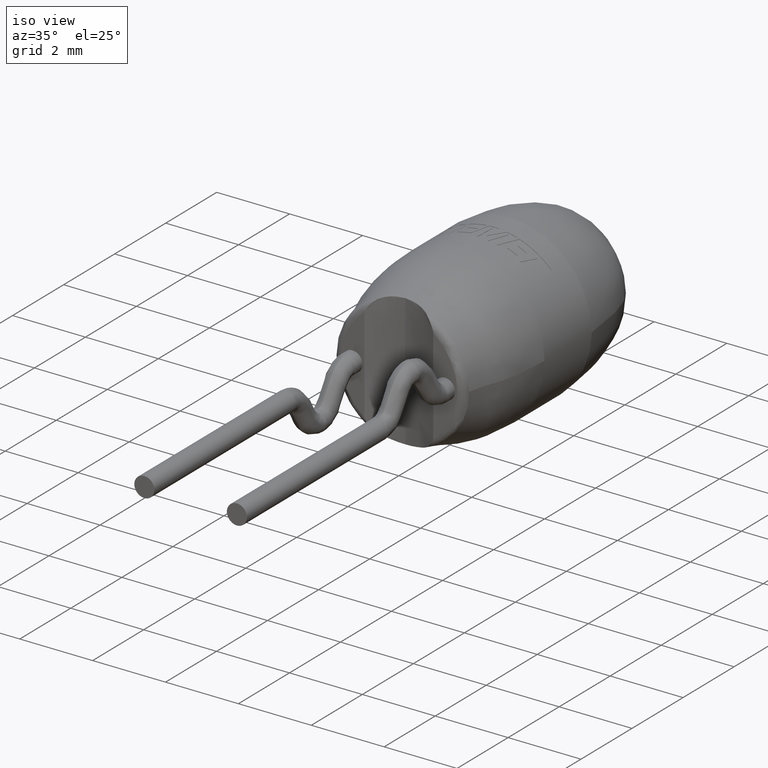
[diagram: clean part render]
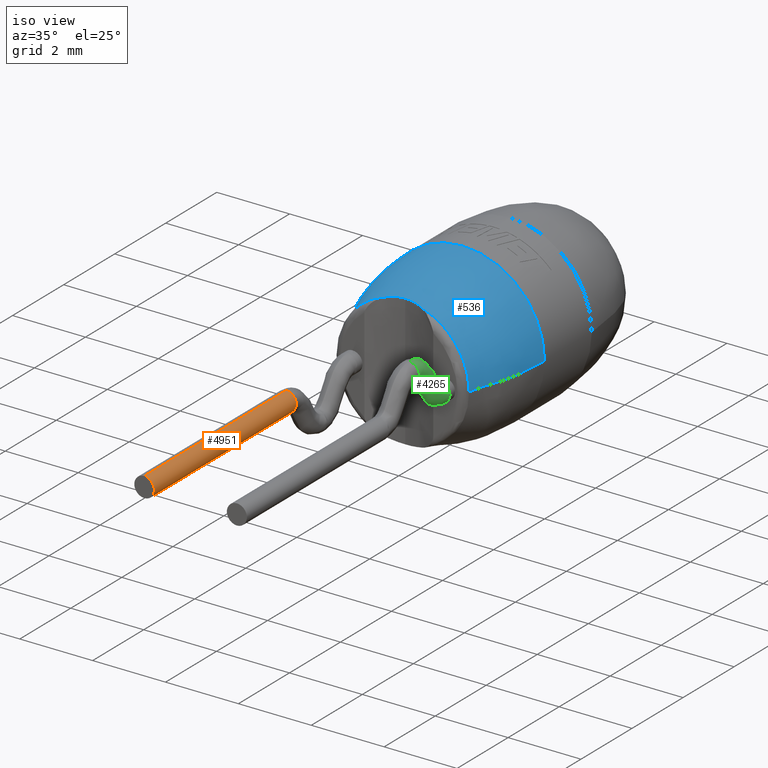
[diagram: same view with three faces highlighted in distinct colors, each labeled with its STEP entity id]
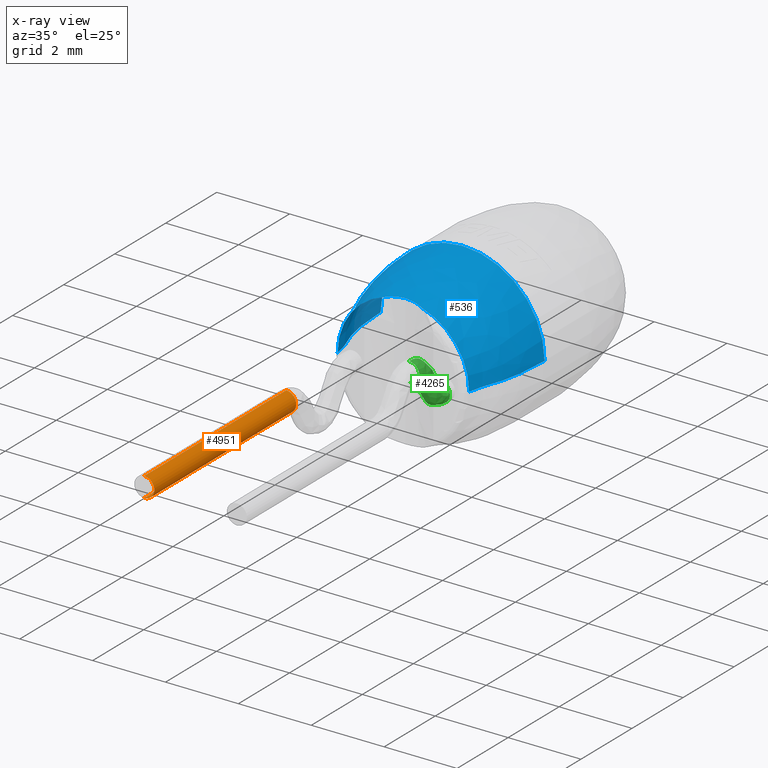
[diagram: x-ray of the same camera — body ghosted, the three highlighted faces saturated]
A machine part, iso view with three faces highlighted in distinct colors.
The next image is the same camera in x-ray (body ghosted, the three faces saturated) — at least one of them is partly hidden behind the body in this view.
Their STEP definitions:

[orange] entity #4951 — the highlighted face is a freeform B-spline surface patch.
#67 = CARTESIAN_POINT ( 'NONE',  ( -1.270000000000000000, -2.602472728346504100, -0.2749999999999990200 ) ) ;
#84 = CARTESIAN_POINT ( 'NONE',  ( -1.270000000000000000, -8.160640000000000800, 0.2750000000000005800 ) ) ;
#148 = CARTESIAN_POINT ( 'NONE',  ( -1.270000000000000000, -8.160640000000000800, -0.2749999999999997400 ) ) ;
#202 =( BOUNDED_SURFACE ( )  B_SPLINE_SURFACE ( 3, 1, ( 
 ( #4151, #4241 ),
 ( #2132, #4200 ),
 ( #1374, #3808 ),
 ( #2596, #4621 ),
 ( #4636, #3012 ),
 ( #576, #1755 ),
 ( #2181, #84 ) ),
 .UNSPECIFIED., .T., .F., .T. ) 
 B_SPLINE_SURFACE_WITH_KNOTS ( ( 4, 3, 4 ),
 ( 2, 2 ),
 ( 0.0000000000000000000, 0.5000000000000000000, 1.000000000000000000 ),
 ( 0.0000000000000000000, 1.000000000000000000 ),
 .UNSPECIFIED. ) 
 GEOMETRIC_REPRESENTATION_ITEM ( )  RATIONAL_B_SPLINE_SURFACE ( (
 ( 1.000000000000000000, 1.000000000000000000),
 ( 0.3333333333333333700, 0.3333333333333333700),
 ( 0.3333333333333333700, 0.3333333333333333700),
 ( 1.000000000000000000, 1.000000000000000000),
 ( 0.3333333333333333700, 0.3333333333333333700),
 ( 0.3333333333333333700, 0.3333333333333333700),
 ( 1.000000000000000000, 1.000000000000000000) ) ) 
 REPRESENTATION_ITEM ( '' )  SURFACE ( )  );
#261 = CARTESIAN_POINT ( 'NONE',  ( -0.7200000000000002000, -2.602472728346504100, -0.2749999999999980800 ) ) ;
#299 = CARTESIAN_POINT ( 'NONE',  ( -1.270000000000000000, -8.160640000000000800, 0.2750000000000006300 ) ) ;
#440 = CARTESIAN_POINT ( 'NONE',  ( -1.270000000000000000, -8.160640000000000800, -0.2749999999999997400 ) ) ;
#512 = EDGE_CURVE ( 'NONE', #4639, #2199, #1063, .T. ) ;
#576 = CARTESIAN_POINT ( 'NONE',  ( -0.7200000000000002000, -2.598807271653498700, 0.2750000000000011300 ) ) ;
#896 = CARTESIAN_POINT ( 'NONE',  ( -1.270000000000000000, -2.598807271653498700, 0.2750000000000012400 ) ) ;
#908 = DIRECTION ( 'NONE',  ( -0.0000000000000000000, 1.000000000000000000, 0.0000000000000000000 ) ) ;
#1026 = ORIENTED_EDGE ( 'NONE', *, *, #2869, .T. ) ;
#1063 = B_SPLINE_CURVE_WITH_KNOTS ( 'NONE', 1,
 ( #67, #440 ),
 .UNSPECIFIED., .F., .F.,
 ( 2, 2 ),
 ( 0.0000000000000000000, 1.000000000000000000 ),
 .UNSPECIFIED. ) ;
#1126 = EDGE_CURVE ( 'NONE', #3101, #2199, #3666, .T. ) ;
#1374 = CARTESIAN_POINT ( 'NONE',  ( -1.819999999999999800, -2.602472728346504100, -0.2749999999999985200 ) ) ;
#1755 = CARTESIAN_POINT ( 'NONE',  ( -0.7200000000000002000, -8.160639999999999000, 0.2750000000000004700 ) ) ;
#1920 = CARTESIAN_POINT ( 'NONE',  ( -1.270000000000000000, -2.598807271653498700, 0.2750000000000012400 ) ) ;
#1935 = CARTESIAN_POINT ( 'NONE',  ( -1.270000000000000000, -2.602472728346504100, -0.2749999999999990200 ) ) ;
#2057 = CARTESIAN_POINT ( 'NONE',  ( -1.270000000000000000, -8.160640000000000800, 0.2750000000000006300 ) ) ;
#2111 = CARTESIAN_POINT ( 'NONE',  ( -1.270000000000000000, -8.160640000000000800, 4.065758146820641600E-016 ) ) ;
#2132 = CARTESIAN_POINT ( 'NONE',  ( -1.819999999999999800, -2.598807271653498700, 0.2750000000000011300 ) ) ;
#2181 = CARTESIAN_POINT ( 'NONE',  ( -1.270000000000000000, -2.598807271653498700, 0.2750000000000012400 ) ) ;
#2199 = VERTEX_POINT ( 'NONE', #148 ) ;
#2461 = CARTESIAN_POINT ( 'NONE',  ( -1.270000000000000000, -2.598807271653498700, 0.2750000000000012400 ) ) ;
#2596 = CARTESIAN_POINT ( 'NONE',  ( -1.270000000000000000, -2.602472728346504100, -0.2749999999999990200 ) ) ;
#2852 =( BOUNDED_CURVE ( )  B_SPLINE_CURVE ( 3, ( #4370, #261, #3986, #1920 ),
 .UNSPECIFIED., .F., .F. ) 
 B_SPLINE_CURVE_WITH_KNOTS ( ( 4, 4 ),
 ( 0.5000000000000004400, 1.000000000000000000 ),
 .UNSPECIFIED. ) 
 CURVE ( )  GEOMETRIC_REPRESENTATION_ITEM ( )  RATIONAL_B_SPLINE_CURVE ( ( 0.9999999999999994400, 0.3333333333333333700, 0.3333333333333339800, 1.000000000000000000 ) ) 
 REPRESENTATION_ITEM ( '' )  );
#2869 = EDGE_CURVE ( 'NONE', #2971, #3101, #3716, .T. ) ;
#2971 = VERTEX_POINT ( 'NONE', #896 ) ;
#3012 = CARTESIAN_POINT ( 'NONE',  ( -0.7200000000000002000, -8.160639999999999000, -0.2749999999999991900 ) ) ;
#3101 = VERTEX_POINT ( 'NONE', #299 ) ;
#3578 = ORIENTED_EDGE ( 'NONE', *, *, #4034, .T. ) ;
#3666 = CIRCLE ( 'NONE', #3774, 0.2750000000000001900 ) ;
#3716 = B_SPLINE_CURVE_WITH_KNOTS ( 'NONE', 1,
 ( #2461, #2057 ),
 .UNSPECIFIED., .F., .F.,
 ( 2, 2 ),
 ( 0.0000000000000000000, 1.000000000000000000 ),
 .UNSPECIFIED. ) ;
#3739 = DIRECTION ( 'NONE',  ( 0.0000000000000000000, 0.0000000000000000000, 1.000000000000000000 ) ) ;
#3774 = AXIS2_PLACEMENT_3D ( 'NONE', #2111, #908, #3739 ) ;
#3808 = CARTESIAN_POINT ( 'NONE',  ( -1.819999999999999800, -8.160639999999999000, -0.2749999999999991900 ) ) ;
#3986 = CARTESIAN_POINT ( 'NONE',  ( -0.7200000000000016400, -2.598807271653498700, 0.2750000000000011300 ) ) ;
#4034 = EDGE_CURVE ( 'NONE', #4639, #2971, #2852, .T. ) ;
#4151 = CARTESIAN_POINT ( 'NONE',  ( -1.270000000000000000, -2.598807271653498700, 0.2750000000000012400 ) ) ;
#4153 = ORIENTED_EDGE ( 'NONE', *, *, #512, .F. ) ;
#4200 = CARTESIAN_POINT ( 'NONE',  ( -1.819999999999999800, -8.160639999999999000, 0.2750000000000004700 ) ) ;
#4204 = FACE_OUTER_BOUND ( 'NONE', #5241, .T. ) ;
#4241 = CARTESIAN_POINT ( 'NONE',  ( -1.270000000000000000, -8.160640000000000800, 0.2750000000000005800 ) ) ;
#4370 = CARTESIAN_POINT ( 'NONE',  ( -1.270000000000000000, -2.602472728346504100, -0.2749999999999990200 ) ) ;
#4621 = CARTESIAN_POINT ( 'NONE',  ( -1.270000000000000000, -8.160640000000000800, -0.2749999999999997400 ) ) ;
#4636 = CARTESIAN_POINT ( 'NONE',  ( -0.7200000000000002000, -2.602472728346504100, -0.2749999999999985200 ) ) ;
#4639 = VERTEX_POINT ( 'NONE', #1935 ) ;
#4728 = ORIENTED_EDGE ( 'NONE', *, *, #1126, .T. ) ;
#4951 = ADVANCED_FACE ( 'NONE', ( #4204 ), #202, .T. ) ;
#5241 = EDGE_LOOP ( 'NONE', ( #4153, #3578, #1026, #4728 ) ) ;

[blue] entity #536 — the highlighted face is a freeform B-spline surface patch.
#22 = ORIENTED_EDGE ( 'NONE', *, *, #133, .T. ) ;
#29 = VERTEX_POINT ( 'NONE', #511 ) ;
#133 = EDGE_CURVE ( 'NONE', #3281, #4577, #1496, .T. ) ;
#189 = CARTESIAN_POINT ( 'NONE',  ( 0.3498740845032951000, 0.2281847305120173200, 1.784245977583445600 ) ) ;
#195 = CARTESIAN_POINT ( 'NONE',  ( -2.250000000000000000, 2.498771519999999600, 5.510910596163088600E-016 ) ) ;
#244 = CIRCLE ( 'NONE', #5180, 2.250000000000000000 ) ;
#251 = CARTESIAN_POINT ( 'NONE',  ( -2.249999999999998200, 2.498771519999999600, 4.499999999999999100 ) ) ;
#390 = AXIS2_PLACEMENT_3D ( 'NONE', #1227, #3278, #2853 ) ;
#486 = CARTESIAN_POINT ( 'NONE',  ( -0.1779206026474264300, 0.2443543806535133900, 1.812964344015799400 ) ) ;
#511 = CARTESIAN_POINT ( 'NONE',  ( -0.5133288383304959200, 0.1795771798991588600, 1.730556491400163000 ) ) ;
#536 = ADVANCED_FACE ( 'NONE', ( #1425 ), #2008, .T. ) ;
#572 = ORIENTED_EDGE ( 'NONE', *, *, #3342, .F. ) ;
#621 = VERTEX_POINT ( 'NONE', #4865 ) ;
#661 = CARTESIAN_POINT ( 'NONE',  ( 2.250000000000000000, 2.498771519999999600, -2.755455298081544300E-016 ) ) ;
#831 = ORIENTED_EDGE ( 'NONE', *, *, #1059, .T. ) ;
#1055 = CARTESIAN_POINT ( 'NONE',  ( 2.211545190359239600, 0.8660124703083875700, -2.708361738543167300E-016 ) ) ;
#1059 = EDGE_CURVE ( 'NONE', #3413, #3419, #4500, .T. ) ;
#1075 = CARTESIAN_POINT ( 'NONE',  ( 1.805085113279457900, 0.1795771798833289100, -2.210591706166225600E-016 ) ) ;
#1149 = CARTESIAN_POINT ( 'NONE',  ( 0.0000000000000000000, 2.498771519999999600, 0.0000000000000000000 ) ) ;
#1169 = EDGE_CURVE ( 'NONE', #4577, #3413, #2954, .T. ) ;
#1181 = CARTESIAN_POINT ( 'NONE',  ( -1.869356933838746600, 0.8056988584797130100, 0.0000000000000000000 ) ) ;
#1201 = CARTESIAN_POINT ( 'NONE',  ( -2.250000000000000000, 2.498771519999999600, 0.0000000000000000000 ) ) ;
#1227 = CARTESIAN_POINT ( 'NONE',  ( 0.0000000000000000000, 2.498771519999999600, 0.0000000000000000000 ) ) ;
#1291 = VERTEX_POINT ( 'NONE', #2593 ) ;
#1405 = ORIENTED_EDGE ( 'NONE', *, *, #1169, .T. ) ;
#1425 = FACE_OUTER_BOUND ( 'NONE', #4739, .T. ) ;
#1463 = DIRECTION ( 'NONE',  ( 0.0000000000000000000, 0.0000000000000000000, -1.000000000000000000 ) ) ;
#1496 = CIRCLE ( 'NONE', #4815, 1.805085113281082600 ) ;
#1582 = CARTESIAN_POINT ( 'NONE',  ( 0.0000000000000000000, 0.1795771798991586700, 0.0000000000000000000 ) ) ;
#1706 = ORIENTED_EDGE ( 'NONE', *, *, #5014, .T. ) ;
#1840 = CARTESIAN_POINT ( 'NONE',  ( 2.211545190359240500, 0.8660124703083875700, 4.423090380718478300 ) ) ;
#1865 = CARTESIAN_POINT ( 'NONE',  ( -1.805085113279457900, 0.1795771798833289100, 4.421183412332451100E-016 ) ) ;
#2008 =( BOUNDED_SURFACE ( )  B_SPLINE_SURFACE ( 3, 3, ( 
 ( #1075, #2227, #4710, #1865 ),
 ( #2668, #2294, #3050, #2702 ),
 ( #1055, #1840, #2651, #2276 ),
 ( #661, #3516, #251, #195 ) ),
 .UNSPECIFIED., .F., .F., .T. ) 
 B_SPLINE_SURFACE_WITH_KNOTS ( ( 4, 4 ),
 ( 4, 4 ),
 ( 0.08076055771298268300, 1.000000000000000000 ),
 ( 0.0000000000000000000, 1.000000000000000000 ),
 .UNSPECIFIED. ) 
 GEOMETRIC_REPRESENTATION_ITEM ( )  RATIONAL_B_SPLINE_SURFACE ( (
 ( 1.000000000000000000, 0.3333333333333334300, 0.3333333333333334300, 1.000000000000000000),
 ( 1.000000000000000000, 0.3333333333333334300, 0.3333333333333334300, 1.000000000000000000),
 ( 1.000000000000000000, 0.3333333333333334300, 0.3333333333333334300, 1.000000000000000000),
 ( 1.000000000000000000, 0.3333333333333334300, 0.3333333333333334300, 1.000000000000000000) ) ) 
 REPRESENTATION_ITEM ( '' )  SURFACE ( )  );
#2093 = CARTESIAN_POINT ( 'NONE',  ( 1.805085113281082600, 0.1795771798991586700, -2.483023502125002300E-016 ) ) ;
#2227 = CARTESIAN_POINT ( 'NONE',  ( 1.805085113279458300, 0.1795771798833288900, 3.610170226558914400 ) ) ;
#2276 = CARTESIAN_POINT ( 'NONE',  ( -2.211545190359239600, 0.8660124703083875700, 5.416723477086333500E-016 ) ) ;
#2294 = CARTESIAN_POINT ( 'NONE',  ( 1.869356933838747000, 0.8056988584797130100, 3.738713867677491800 ) ) ;
#2370 = DIRECTION ( 'NONE',  ( -0.0000000000000000000, -1.000000000000000000, -0.0000000000000000000 ) ) ;
#2402 = CARTESIAN_POINT ( 'NONE',  ( -2.211545190359239600, 0.8660124703083875700, 0.0000000000000000000 ) ) ;
#2593 = CARTESIAN_POINT ( 'NONE',  ( 0.0000000000000000000, 0.2500000000000000000, 1.813783581535901400 ) ) ;
#2602 = CARTESIAN_POINT ( 'NONE',  ( 0.0000000000000000000, 0.1795771798991586700, 0.0000000000000000000 ) ) ;
#2651 = CARTESIAN_POINT ( 'NONE',  ( -2.211545190359239100, 0.8660124703083875700, 4.423090380718480000 ) ) ;
#2668 = CARTESIAN_POINT ( 'NONE',  ( 1.869356933838746600, 0.8056988584797130100, -2.289301985489531500E-016 ) ) ;
#2702 = CARTESIAN_POINT ( 'NONE',  ( -1.869356933838746600, 0.8056988584797130100, 4.578603970979062900E-016 ) ) ;
#2853 = DIRECTION ( 'NONE',  ( 0.0000000000000000000, 0.0000000000000000000, -1.000000000000000000 ) ) ;
#2856 = DIRECTION ( 'NONE',  ( 0.0000000000000000000, 1.000000000000000000, 0.0000000000000000000 ) ) ;
#2954 = B_SPLINE_CURVE_WITH_KNOTS ( 'NONE', 3,
 ( #2093, #3771, #3724, #4127 ),
 .UNSPECIFIED., .F., .F.,
 ( 4, 4 ),
 ( 0.08076055771298268300, 1.000000000000000000 ),
 .UNSPECIFIED. ) ;
#3040 = CARTESIAN_POINT ( 'NONE',  ( 0.1779206026481839300, 0.2443543806534893300, 1.812964344015795900 ) ) ;
#3050 = CARTESIAN_POINT ( 'NONE',  ( -1.869356933838745700, 0.8056988584797130100, 3.738713867677492700 ) ) ;
#3182 = B_SPLINE_CURVE_WITH_KNOTS ( 'NONE', 3,
 ( #4213, #486, #4632, #4649 ),
 .UNSPECIFIED., .F., .F.,
 ( 4, 4 ),
 ( 1.685613529661978500E-013, 0.0005247786373398208300 ),
 .UNSPECIFIED. ) ;
#3226 = DIRECTION ( 'NONE',  ( 0.0000000000000000000, 0.0000000000000000000, -1.000000000000000000 ) ) ;
#3267 = EDGE_CURVE ( 'NONE', #621, #3832, #3652, .T. ) ;
#3278 = DIRECTION ( 'NONE',  ( -0.0000000000000000000, -1.000000000000000000, -0.0000000000000000000 ) ) ;
#3281 = VERTEX_POINT ( 'NONE', #4432 ) ;
#3285 = CIRCLE ( 'NONE', #3761, 1.805085113281082600 ) ;
#3342 = EDGE_CURVE ( 'NONE', #1291, #29, #3182, .T. ) ;
#3410 = CARTESIAN_POINT ( 'NONE',  ( -2.250000000000000000, 2.498771519999999600, 0.0000000000000000000 ) ) ;
#3413 = VERTEX_POINT ( 'NONE', #3835 ) ;
#3419 = VERTEX_POINT ( 'NONE', #4291 ) ;
#3516 = CARTESIAN_POINT ( 'NONE',  ( 2.250000000000000400, 2.498771519999999600, 4.499999999999999100 ) ) ;
#3652 = B_SPLINE_CURVE_WITH_KNOTS ( 'NONE', 3,
 ( #4092, #1181, #2402, #1201 ),
 .UNSPECIFIED., .F., .F.,
 ( 4, 4 ),
 ( 0.08076055771298268300, 1.000000000000000000 ),
 .UNSPECIFIED. ) ;
#3694 = ORIENTED_EDGE ( 'NONE', *, *, #3267, .F. ) ;
#3724 = CARTESIAN_POINT ( 'NONE',  ( 2.211545190359239600, 0.8660124703083875700, -2.708361738543167300E-016 ) ) ;
#3761 = AXIS2_PLACEMENT_3D ( 'NONE', #1582, #2856, #3226 ) ;
#3771 = CARTESIAN_POINT ( 'NONE',  ( 1.869356933838746600, 0.8056988584797130100, -2.289301985489531500E-016 ) ) ;
#3832 = VERTEX_POINT ( 'NONE', #3410 ) ;
#3835 = CARTESIAN_POINT ( 'NONE',  ( 2.250000000000000000, 2.498771519999999600, -2.755455298081544800E-016 ) ) ;
#4076 = EDGE_CURVE ( 'NONE', #621, #29, #3285, .T. ) ;
#4092 = CARTESIAN_POINT ( 'NONE',  ( -1.805085113281082600, 0.1795771798991586700, 0.0000000000000000000 ) ) ;
#4127 = CARTESIAN_POINT ( 'NONE',  ( 2.250000000000000000, 2.498771519999999600, -2.755455298081544800E-016 ) ) ;
#4213 = CARTESIAN_POINT ( 'NONE',  ( 0.0000000000000000000, 0.2500000000000000000, 1.813783581535901400 ) ) ;
#4270 = CARTESIAN_POINT ( 'NONE',  ( 0.0000000000000000000, 0.2500000000000000000, 1.813783581535901400 ) ) ;
#4291 = CARTESIAN_POINT ( 'NONE',  ( 2.755455298081544300E-016, 2.498771519999999600, 2.250000000000000000 ) ) ;
#4347 = ORIENTED_EDGE ( 'NONE', *, *, #4457, .T. ) ;
#4386 = DIRECTION ( 'NONE',  ( 0.0000000000000000000, 0.0000000000000000000, -1.000000000000000000 ) ) ;
#4432 = CARTESIAN_POINT ( 'NONE',  ( 0.5133288383304976900, 0.1795771798991586400, 1.730556491400162800 ) ) ;
#4457 = EDGE_CURVE ( 'NONE', #1291, #3281, #5298, .T. ) ;
#4500 = CIRCLE ( 'NONE', #390, 2.250000000000000000 ) ;
#4577 = VERTEX_POINT ( 'NONE', #4813 ) ;
#4632 = CARTESIAN_POINT ( 'NONE',  ( -0.3498740844473713400, 0.2281847305205579600, 1.784245977595841500 ) ) ;
#4649 = CARTESIAN_POINT ( 'NONE',  ( -0.5133288383304959200, 0.1795771798991588600, 1.730556491400163000 ) ) ;
#4659 = DIRECTION ( 'NONE',  ( 0.0000000000000000000, 1.000000000000000000, 0.0000000000000000000 ) ) ;
#4710 = CARTESIAN_POINT ( 'NONE',  ( -1.805085113279457000, 0.1795771798833288900, 3.610170226558915300 ) ) ;
#4721 = CARTESIAN_POINT ( 'NONE',  ( 0.5133288383304976900, 0.1795771798991586400, 1.730556491400162800 ) ) ;
#4739 = EDGE_LOOP ( 'NONE', ( #22, #1405, #831, #1706, #3694, #5245, #572, #4347 ) ) ;
#4813 = CARTESIAN_POINT ( 'NONE',  ( 1.805085113281082600, 0.1795771798991586700, -2.483023502125002300E-016 ) ) ;
#4815 = AXIS2_PLACEMENT_3D ( 'NONE', #2602, #4659, #1463 ) ;
#4865 = CARTESIAN_POINT ( 'NONE',  ( -1.805085113281082600, 0.1795771798991586700, 0.0000000000000000000 ) ) ;
#5014 = EDGE_CURVE ( 'NONE', #3419, #3832, #244, .T. ) ;
#5180 = AXIS2_PLACEMENT_3D ( 'NONE', #1149, #2370, #4386 ) ;
#5245 = ORIENTED_EDGE ( 'NONE', *, *, #4076, .T. ) ;
#5298 = B_SPLINE_CURVE_WITH_KNOTS ( 'NONE', 3,
 ( #4270, #3040, #189, #4721 ),
 .UNSPECIFIED., .F., .F.,
 ( 4, 4 ),
 ( 1.685617731264159000E-013, 0.0005247786373398222400 ),
 .UNSPECIFIED. ) ;

[green] entity #4265 — the highlighted face is a freeform B-spline surface patch.
#118 = CARTESIAN_POINT ( 'NONE',  ( 1.819999999999999800, -0.7879600984743412300, -0.01985624207537226700 ) ) ;
#138 = CARTESIAN_POINT ( 'NONE',  ( 1.819999999999999800, -0.5627154633241268100, 0.6235803132810333600 ) ) ;
#153 = CARTESIAN_POINT ( 'NONE',  ( 1.270000000000000000, -1.273389187603716200, 1.228239683137719400 ) ) ;
#180 = CARTESIAN_POINT ( 'NONE',  ( 0.7199999999999999700, -1.386076266901819800, 0.6725690503557472100 ) ) ;
#197 = CARTESIAN_POINT ( 'NONE',  ( 1.270000000000000500, -1.220941301886924000, 0.6105634596878881700 ) ) ;
#216 = CARTESIAN_POINT ( 'NONE',  ( 0.7200000000000000800, -0.2071629371403334900, 0.2750000000000000200 ) ) ;
#232 = CARTESIAN_POINT ( 'NONE',  ( 1.270000000000000000, -1.273389187603716200, 1.228239683137719400 ) ) ;
#255 = CARTESIAN_POINT ( 'NONE',  ( 0.7200000000000000800, -0.4584424966480857800, 0.4536665127159250600 ) ) ;
#283 = CARTESIAN_POINT ( 'NONE',  ( 1.269999999999999800, -0.7879600984743412300, -0.01985624207537228800 ) ) ;
#289 = CARTESIAN_POINT ( 'NONE',  ( 1.270000000000000000, -0.2071629371403336500, 0.2750000000000000200 ) ) ;
#302 = CARTESIAN_POINT ( 'NONE',  ( 1.270000000000000000, -1.328379810482972000, 0.6757842973910909200 ) ) ;
#305 = CARTESIAN_POINT ( 'NONE',  ( 1.270000000000000000, -1.328379810482972000, 0.6757842973910909200 ) ) ;
#473 = CARTESIAN_POINT ( 'NONE',  ( 1.270000000000000000, -0.1941170628596664300, -0.2750000000000000200 ) ) ;
#508 = CARTESIAN_POINT ( 'NONE',  ( 1.819999999999999200, -1.138904922838814800, 0.5102783229718548300 ) ) ;
#524 = CARTESIAN_POINT ( 'NONE',  ( 1.819999999999999800, -0.2854669322849760500, 0.2853421115133782900 ) ) ;
#543 = ORIENTED_EDGE ( 'NONE', *, *, #984, .T. ) ;
#574 = CARTESIAN_POINT ( 'NONE',  ( 1.819999999999999800, -0.3499788764250377800, -0.2724699693951807600 ) ) ;
#591 = CARTESIAN_POINT ( 'NONE',  ( 0.7200000000000002000, -1.036057722087983000, 0.3434712038384018500 ) ) ;
#609 = CARTESIAN_POINT ( 'NONE',  ( 1.269999999999999600, -1.273546590828967400, 0.6525891141157882400 ) ) ;
#629 = CARTESIAN_POINT ( 'NONE',  ( 1.270000000000000700, -0.2854669322849761600, 0.2853421115133781300 ) ) ;
#646 = CARTESIAN_POINT ( 'NONE',  ( 1.270000000000000700, -0.5104358902641451500, -0.2220583630789738900 ) ) ;
#662 = CARTESIAN_POINT ( 'NONE',  ( 1.269999999999999600, -0.9631253724827693000, 1.110568141411591800 ) ) ;
#699 = CARTESIAN_POINT ( 'NONE',  ( 1.269999999999999600, -1.273546590828967400, 0.6525891141157882400 ) ) ;
#893 = VERTEX_POINT ( 'NONE', #2456 ) ;
#902 = CARTESIAN_POINT ( 'NONE',  ( 1.269999999999999800, -0.2471185967973413600, -0.2741396513366730600 ) ) ;
#912 = CARTESIAN_POINT ( 'NONE',  ( 1.819999999999999800, -0.2244573955222463300, 0.2751333369915948700 ) ) ;
#947 = CARTESIAN_POINT ( 'NONE',  ( 1.269999999999999400, -1.138904922838814800, 0.5102783229718547100 ) ) ;
#981 = CARTESIAN_POINT ( 'NONE',  ( 1.269999999999999800, -0.2244573955222463100, 0.2751333369915949800 ) ) ;
#983 = CARTESIAN_POINT ( 'NONE',  ( 1.819999999999999800, -0.6431701813828167900, -0.1448330700613218200 ) ) ;
#984 = EDGE_CURVE ( 'NONE', #5101, #893, #4137, .T. ) ;
#1004 = CARTESIAN_POINT ( 'NONE',  ( 0.7199999999999999700, -0.3754620405674803900, 0.3503966461210673000 ) ) ;
#1022 = CARTESIAN_POINT ( 'NONE',  ( 0.7199999999999999700, -1.366085949698139700, 1.224448689332119600 ) ) ;
#1035 = CARTESIAN_POINT ( 'NONE',  ( 1.270000000000000000, -0.1941170628596664300, -0.2750000000000000200 ) ) ;
#1041 = CARTESIAN_POINT ( 'NONE',  ( 0.7200000000000002000, -1.220941301886923700, 0.6105634596878881700 ) ) ;
#1057 = CARTESIAN_POINT ( 'NONE',  ( 1.270000000000000000, -0.6431701813828170100, -0.1448330700613217600 ) ) ;
#1074 = CARTESIAN_POINT ( 'NONE',  ( 1.270000000000000000, -0.6431701813828170100, -0.1448330700613217600 ) ) ;
#1077 = CARTESIAN_POINT ( 'NONE',  ( 1.270000000000000000, -0.4584424966480858400, 0.4536665127159250100 ) ) ;
#1092 = CARTESIAN_POINT ( 'NONE',  ( 1.269999999999999800, -0.3499788764250378300, -0.2724699693951808100 ) ) ;
#1184 = CARTESIAN_POINT ( 'NONE',  ( 1.270000000000000000, -1.386076266901819800, 0.6725690503557473200 ) ) ;
#1338 = CARTESIAN_POINT ( 'NONE',  ( 1.819999999999999800, -0.3200988415518203300, 0.3040052300073931600 ) ) ;
#1355 = VERTEX_POINT ( 'NONE', #3065 ) ;
#1371 = CARTESIAN_POINT ( 'NONE',  ( 1.820000000000000300, -0.4584424966480857800, 0.4536665127159252300 ) ) ;
#1392 =( BOUNDED_SURFACE ( )  B_SPLINE_SURFACE ( 3, 3, ( 
 ( #3366, #2147, #3384, #2165, #4198, #2615, #2999, #3425, #947, #3791, #2546, #3347, #4635, #3400, #4240 ),
 ( #1737, #2962, #574, #3823, #983, #118, #1804, #4652, #508, #2216, #1754, #3806, #2949, #2577, #1790 ),
 ( #4604, #912, #3776, #524, #1338, #4620, #1371, #138, #3857, #4711, #4766, #2686, #4752, #3877, #3443 ),
 ( #2278, #2297, #1844, #629, #4731, #1866, #1077, #2243, #3066, #4349, #662, #2260, #232, #4333, #3084 ),
 ( #216, #5162, #3051, #3479, #3460, #1004, #255, #3100, #5177, #2634, #1420, #3030, #4315, #1022, #3925 ),
 ( #3517, #2230, #5146, #5129, #3498, #1436, #4298, #591, #1493, #1041, #1896, #2671, #2654, #1878, #180 ),
 ( #4276, #1826, #4689, #646, #1057, #5110, #1475, #3909, #3890, #197, #609, #1457, #305, #5212, #1508 ) ),
 .UNSPECIFIED., .T., .F., .T. ) 
 B_SPLINE_SURFACE_WITH_KNOTS ( ( 4, 3, 4 ),
 ( 4, 1, 1, 1, 1, 1, 1, 1, 1, 1, 1, 1, 4 ),
 ( 0.0000000000000000000, 0.5000000000000000000, 1.000000000000000000 ),
 ( 0.0000000000000000000, 0.06957571068620913000, 0.1350258478347936800, 0.1986620221013318300, 0.2624649247093007200, 0.3938027901543073000, 0.5289218699022938400, 0.6604227715407243700, 0.7800707561237092400, 0.8345565399525722800, 0.8868325722933068100, 0.9400353035376261000, 1.000000000000000000 ),
 .UNSPECIFIED. ) 
 GEOMETRIC_REPRESENTATION_ITEM ( )  RATIONAL_B_SPLINE_SURFACE ( (
 ( 1.000000000000000000, 1.000000000000000000, 1.000000000000000000, 0.9999999999999996700, 1.000000000000000000, 1.000000000000000200, 1.000000000000000200, 0.9999999999999994400, 1.000000000000000400, 0.9999999999999997800, 1.000000000000000400, 0.9999999999999997800, 1.000000000000000200, 1.000000000000000200, 1.000000000000000200),
 ( 0.3333333333333333700, 0.3333333333333333700, 0.3333333333333333100, 0.3333333333333333100, 0.3333333333333333700, 0.3333333333333334300, 0.3333333333333333700, 0.3333333333333332000, 0.3333333333333334800, 0.3333333333333333700, 0.3333333333333334300, 0.3333333333333333100, 0.3333333333333334800, 0.3333333333333334300, 0.3333333333333334300),
 ( 0.3333333333333333700, 0.3333333333333333700, 0.3333333333333333100, 0.3333333333333333100, 0.3333333333333333700, 0.3333333333333334300, 0.3333333333333333700, 0.3333333333333332000, 0.3333333333333334800, 0.3333333333333333700, 0.3333333333333334300, 0.3333333333333333100, 0.3333333333333334800, 0.3333333333333334300, 0.3333333333333334300),
 ( 1.000000000000000000, 1.000000000000000000, 1.000000000000000000, 0.9999999999999996700, 1.000000000000000000, 1.000000000000000200, 1.000000000000000200, 0.9999999999999994400, 1.000000000000000400, 0.9999999999999997800, 1.000000000000000400, 0.9999999999999997800, 1.000000000000000200, 1.000000000000000200, 1.000000000000000200),
 ( 0.3333333333333333700, 0.3333333333333333700, 0.3333333333333333100, 0.3333333333333333100, 0.3333333333333333700, 0.3333333333333334300, 0.3333333333333333700, 0.3333333333333332000, 0.3333333333333334800, 0.3333333333333333700, 0.3333333333333334300, 0.3333333333333333100, 0.3333333333333334800, 0.3333333333333334300, 0.3333333333333334300),
 ( 0.3333333333333333700, 0.3333333333333333700, 0.3333333333333333100, 0.3333333333333333100, 0.3333333333333333700, 0.3333333333333334300, 0.3333333333333333700, 0.3333333333333332000, 0.3333333333333334800, 0.3333333333333333700, 0.3333333333333334300, 0.3333333333333333100, 0.3333333333333334800, 0.3333333333333334300, 0.3333333333333334300),
 ( 1.000000000000000000, 1.000000000000000000, 1.000000000000000000, 0.9999999999999996700, 1.000000000000000000, 1.000000000000000200, 1.000000000000000200, 0.9999999999999994400, 1.000000000000000400, 0.9999999999999997800, 1.000000000000000400, 0.9999999999999997800, 1.000000000000000200, 1.000000000000000200, 1.000000000000000200) ) ) 
 REPRESENTATION_ITEM ( '' )  SURFACE ( )  );
#1420 = CARTESIAN_POINT ( 'NONE',  ( 0.7199999999999999700, -0.9631253724827698600, 1.110568141411592200 ) ) ;
#1436 = CARTESIAN_POINT ( 'NONE',  ( 0.7199999999999999700, -0.7879600984743412300, -0.01985624207537226700 ) ) ;
#1457 = CARTESIAN_POINT ( 'NONE',  ( 1.270000000000000000, -1.304840312819099500, 0.6676690679737343800 ) ) ;
#1475 = CARTESIAN_POINT ( 'NONE',  ( 1.270000000000000000, -0.9181087682804065500, 0.1506956003993151800 ) ) ;
#1490 = CARTESIAN_POINT ( 'NONE',  ( 1.270000000000000500, -1.036057722087983200, 0.3434712038384019100 ) ) ;
#1493 = CARTESIAN_POINT ( 'NONE',  ( 0.7199999999999998600, -1.138904922838814800, 0.5102783229718548300 ) ) ;
#1508 = CARTESIAN_POINT ( 'NONE',  ( 1.270000000000000000, -1.386076266901819800, 0.6725690503557473200 ) ) ;
#1591 =( BOUNDED_CURVE ( )  B_SPLINE_CURVE ( 3, ( #1982, #4436, #4061, #1184 ),
 .UNSPECIFIED., .F., .T. ) 
 B_SPLINE_CURVE_WITH_KNOTS ( ( 4, 4 ),
 ( 0.4999999999999997800, 1.000000000000000000 ),
 .UNSPECIFIED. ) 
 CURVE ( )  GEOMETRIC_REPRESENTATION_ITEM ( )  RATIONAL_B_SPLINE_CURVE ( ( 1.000000000000000400, 0.3333333333333334300, 0.3333333333333331500, 1.000000000000000200 ) ) 
 REPRESENTATION_ITEM ( '' )  );
#1737 = CARTESIAN_POINT ( 'NONE',  ( 1.819999999999999800, -0.1941170628596662600, -0.2749999999999999700 ) ) ;
#1754 = CARTESIAN_POINT ( 'NONE',  ( 1.819999999999999800, -1.273546590828967800, 0.6525891141157886800 ) ) ;
#1786 = CARTESIAN_POINT ( 'NONE',  ( 1.269999999999999600, -0.9631253724827693000, 1.110568141411591800 ) ) ;
#1790 = CARTESIAN_POINT ( 'NONE',  ( 1.819999999999999800, -1.386076266901819800, 0.6725690503557472100 ) ) ;
#1802 = CARTESIAN_POINT ( 'NONE',  ( 1.270000000000000000, -1.415203733098179900, 1.222439932948324600 ) ) ;
#1804 = CARTESIAN_POINT ( 'NONE',  ( 1.820000000000000300, -0.9181087682804069900, 0.1506956003993151800 ) ) ;
#1826 = CARTESIAN_POINT ( 'NONE',  ( 1.269999999999999800, -0.2471185967973413600, -0.2741396513366730600 ) ) ;
#1844 = CARTESIAN_POINT ( 'NONE',  ( 1.269999999999999800, -0.2580208170501014400, 0.2753921046011569300 ) ) ;
#1864 = CARTESIAN_POINT ( 'NONE',  ( 1.270000000000000000, -1.386076266901819800, 0.6725690503557473200 ) ) ;
#1866 = CARTESIAN_POINT ( 'NONE',  ( 1.269999999999999800, -0.3754620405674801700, 0.3503966461210671300 ) ) ;
#1878 = CARTESIAN_POINT ( 'NONE',  ( 0.7199999999999999700, -1.366092970834059000, 0.6736826583210584500 ) ) ;
#1896 = CARTESIAN_POINT ( 'NONE',  ( 0.7199999999999999700, -1.273546590828967800, 0.6525891141157886800 ) ) ;
#1982 = CARTESIAN_POINT ( 'NONE',  ( 1.270000000000000000, -1.415203733098179900, 1.222439932948324600 ) ) ;
#2147 = CARTESIAN_POINT ( 'NONE',  ( 1.269999999999999800, -0.2471185967973413600, -0.2741396513366730600 ) ) ;
#2165 = CARTESIAN_POINT ( 'NONE',  ( 1.270000000000000700, -0.5104358902641451500, -0.2220583630789738900 ) ) ;
#2216 = CARTESIAN_POINT ( 'NONE',  ( 1.820000000000000300, -1.220941301886923700, 0.6105634596878881700 ) ) ;
#2230 = CARTESIAN_POINT ( 'NONE',  ( 0.7199999999999999700, -0.2471185967973413600, -0.2741396513366730100 ) ) ;
#2243 = CARTESIAN_POINT ( 'NONE',  ( 1.270000000000000700, -0.5627154633241267000, 0.6235803132810335800 ) ) ;
#2260 = CARTESIAN_POINT ( 'NONE',  ( 1.270000000000000000, -1.100602904897774800, 1.184980339158737000 ) ) ;
#2278 = CARTESIAN_POINT ( 'NONE',  ( 1.270000000000000000, -0.2071629371403334900, 0.2750000000000000800 ) ) ;
#2297 = CARTESIAN_POINT ( 'NONE',  ( 1.269999999999999800, -0.2244573955222463100, 0.2751333369915949800 ) ) ;
#2311 = VERTEX_POINT ( 'NONE', #2627 ) ;
#2456 = CARTESIAN_POINT ( 'NONE',  ( 1.270000000000000000, -0.2071629371403336500, 0.2750000000000000200 ) ) ;
#2458 = EDGE_CURVE ( 'NONE', #5101, #2311, #4443, .T. ) ;
#2546 = CARTESIAN_POINT ( 'NONE',  ( 1.269999999999999600, -1.273546590828967400, 0.6525891141157882400 ) ) ;
#2555 = EDGE_CURVE ( 'NONE', #1355, #2311, #1591, .T. ) ;
#2577 = CARTESIAN_POINT ( 'NONE',  ( 1.819999999999999800, -1.366092970834059000, 0.6736826583210584500 ) ) ;
#2613 = CARTESIAN_POINT ( 'NONE',  ( 1.270000000000000500, -0.2854669322849761600, 0.2853421115133781300 ) ) ;
#2615 = CARTESIAN_POINT ( 'NONE',  ( 1.269999999999999800, -0.7879600984743412300, -0.01985624207537228800 ) ) ;
#2627 = CARTESIAN_POINT ( 'NONE',  ( 1.270000000000000000, -1.386076266901819800, 0.6725690503557473200 ) ) ;
#2634 = CARTESIAN_POINT ( 'NONE',  ( 0.7200000000000002000, -0.8113515141657932100, 0.9854213629074716200 ) ) ;
#2654 = CARTESIAN_POINT ( 'NONE',  ( 0.7199999999999998600, -1.328379810482972000, 0.6757842973910909200 ) ) ;
#2671 = CARTESIAN_POINT ( 'NONE',  ( 0.7199999999999999700, -1.304840312819099500, 0.6676690679737344900 ) ) ;
#2686 = CARTESIAN_POINT ( 'NONE',  ( 1.819999999999999400, -1.100602904897774800, 1.184980339158736600 ) ) ;
#2754 = B_SPLINE_CURVE_WITH_KNOTS ( 'NONE', 3,
 ( #5073, #981, #3802, #2613, #4273, #3028, #2994, #4685, #3397, #4235, #1786, #4650, #153, #3837, #1802 ),
 .UNSPECIFIED., .F., .F.,
 ( 4, 1, 1, 1, 1, 1, 1, 1, 1, 1, 1, 1, 4 ),
 ( 0.0000000000000000000, 0.06957571068620913000, 0.1350258478347936800, 0.1986620221013318300, 0.2624649247093007200, 0.3938027901543073000, 0.5289218699022938400, 0.6604227715407243700, 0.7800707561237092400, 0.8345565399525722800, 0.8868325722933068100, 0.9400353035376261000, 1.000000000000000000 ),
 .UNSPECIFIED. ) ;
#2914 = EDGE_LOOP ( 'NONE', ( #543, #4317, #4581, #4722 ) ) ;
#2949 = CARTESIAN_POINT ( 'NONE',  ( 1.819999999999999800, -1.328379810482972000, 0.6757842973910909200 ) ) ;
#2962 = CARTESIAN_POINT ( 'NONE',  ( 1.819999999999999800, -0.2471185967973413600, -0.2741396513366730100 ) ) ;
#2994 = CARTESIAN_POINT ( 'NONE',  ( 1.270000000000000000, -0.4584424966480859000, 0.4536665127159250100 ) ) ;
#2999 = CARTESIAN_POINT ( 'NONE',  ( 1.270000000000000000, -0.9181087682804065500, 0.1506956003993151800 ) ) ;
#3028 = CARTESIAN_POINT ( 'NONE',  ( 1.269999999999999800, -0.3754620405674801700, 0.3503966461210671300 ) ) ;
#3030 = CARTESIAN_POINT ( 'NONE',  ( 0.7199999999999999700, -1.100602904897774800, 1.184980339158736600 ) ) ;
#3036 = EDGE_CURVE ( 'NONE', #893, #1355, #2754, .T. ) ;
#3051 = CARTESIAN_POINT ( 'NONE',  ( 0.7199999999999999700, -0.2580208170501014400, 0.2753921046011569300 ) ) ;
#3065 = CARTESIAN_POINT ( 'NONE',  ( 1.270000000000000000, -1.415203733098179900, 1.222439932948324600 ) ) ;
#3066 = CARTESIAN_POINT ( 'NONE',  ( 1.269999999999999400, -0.6804982342837341300, 0.8148206102230487500 ) ) ;
#3084 = CARTESIAN_POINT ( 'NONE',  ( 1.270000000000000000, -1.415203733098179900, 1.222439932948324600 ) ) ;
#3092 = FACE_OUTER_BOUND ( 'NONE', #2914, .T. ) ;
#3100 = CARTESIAN_POINT ( 'NONE',  ( 0.7200000000000002000, -0.5627154633241265900, 0.6235803132810333600 ) ) ;
#3117 = CARTESIAN_POINT ( 'NONE',  ( 1.270000000000000500, -0.5104358902641451500, -0.2220583630789738600 ) ) ;
#3347 = CARTESIAN_POINT ( 'NONE',  ( 1.270000000000000000, -1.304840312819099500, 0.6676690679737343800 ) ) ;
#3366 = CARTESIAN_POINT ( 'NONE',  ( 1.270000000000000000, -0.1941170628596662600, -0.2750000000000000200 ) ) ;
#3384 = CARTESIAN_POINT ( 'NONE',  ( 1.269999999999999800, -0.3499788764250378300, -0.2724699693951808100 ) ) ;
#3397 = CARTESIAN_POINT ( 'NONE',  ( 1.269999999999999400, -0.6804982342837341300, 0.8148206102230488600 ) ) ;
#3400 = CARTESIAN_POINT ( 'NONE',  ( 1.270000000000000000, -1.366092970834059500, 0.6736826583210585600 ) ) ;
#3425 = CARTESIAN_POINT ( 'NONE',  ( 1.270000000000000700, -1.036057722087983200, 0.3434712038384018500 ) ) ;
#3443 = CARTESIAN_POINT ( 'NONE',  ( 1.819999999999999800, -1.415203733098179500, 1.222439932948324600 ) ) ;
#3460 = CARTESIAN_POINT ( 'NONE',  ( 0.7200000000000000800, -0.3200988415518204500, 0.3040052300073932700 ) ) ;
#3479 = CARTESIAN_POINT ( 'NONE',  ( 0.7200000000000002000, -0.2854669322849760500, 0.2853421115133781300 ) ) ;
#3496 = CARTESIAN_POINT ( 'NONE',  ( 1.270000000000000000, -1.366092970834059500, 0.6736826583210585600 ) ) ;
#3498 = CARTESIAN_POINT ( 'NONE',  ( 0.7200000000000000800, -0.6431701813828167900, -0.1448330700613218200 ) ) ;
#3517 = CARTESIAN_POINT ( 'NONE',  ( 0.7200000000000000800, -0.1941170628596662600, -0.2749999999999999700 ) ) ;
#3552 = CARTESIAN_POINT ( 'NONE',  ( 1.270000000000000000, -1.304840312819099500, 0.6676690679737343800 ) ) ;
#3776 = CARTESIAN_POINT ( 'NONE',  ( 1.819999999999999800, -0.2580208170501014400, 0.2753921046011567600 ) ) ;
#3791 = CARTESIAN_POINT ( 'NONE',  ( 1.270000000000000500, -1.220941301886924000, 0.6105634596878881700 ) ) ;
#3802 = CARTESIAN_POINT ( 'NONE',  ( 1.269999999999999800, -0.2580208170501014400, 0.2753921046011569300 ) ) ;
#3806 = CARTESIAN_POINT ( 'NONE',  ( 1.819999999999999400, -1.304840312819099500, 0.6676690679737344900 ) ) ;
#3823 = CARTESIAN_POINT ( 'NONE',  ( 1.819999999999999800, -0.5104358902641451500, -0.2220583630789737800 ) ) ;
#3828 = CARTESIAN_POINT ( 'NONE',  ( 1.270000000000000000, -0.1941170628596664300, -0.2750000000000000200 ) ) ;
#3837 = CARTESIAN_POINT ( 'NONE',  ( 1.270000000000000000, -1.366085949698140100, 1.224448689332120000 ) ) ;
#3857 = CARTESIAN_POINT ( 'NONE',  ( 1.819999999999999200, -0.6804982342837342400, 0.8148206102230490800 ) ) ;
#3877 = CARTESIAN_POINT ( 'NONE',  ( 1.819999999999999800, -1.366085949698139700, 1.224448689332119600 ) ) ;
#3890 = CARTESIAN_POINT ( 'NONE',  ( 1.269999999999999400, -1.138904922838814800, 0.5102783229718547100 ) ) ;
#3907 = CARTESIAN_POINT ( 'NONE',  ( 1.270000000000000000, -0.9181087682804065500, 0.1506956003993151800 ) ) ;
#3909 = CARTESIAN_POINT ( 'NONE',  ( 1.270000000000000700, -1.036057722087983200, 0.3434712038384018500 ) ) ;
#3925 = CARTESIAN_POINT ( 'NONE',  ( 0.7199999999999999700, -1.415203733098179500, 1.222439932948324600 ) ) ;
#4061 = CARTESIAN_POINT ( 'NONE',  ( 1.820000000000000500, -1.386076266901819800, 0.6725690503557473200 ) ) ;
#4137 =( BOUNDED_CURVE ( )  B_SPLINE_CURVE ( 3, ( #3828, #4785, #5196, #289 ),
 .UNSPECIFIED., .F., .F. ) 
 B_SPLINE_CURVE_WITH_KNOTS ( ( 4, 4 ),
 ( 0.0000000000000000000, 3.141592653589793100 ),
 .UNSPECIFIED. ) 
 CURVE ( )  GEOMETRIC_REPRESENTATION_ITEM ( )  RATIONAL_B_SPLINE_CURVE ( ( 1.000000000000000000, 0.3333333333333333700, 0.3333333333333333700, 1.000000000000000000 ) ) 
 REPRESENTATION_ITEM ( '' )  );
#4198 = CARTESIAN_POINT ( 'NONE',  ( 1.270000000000000000, -0.6431701813828170100, -0.1448330700613217600 ) ) ;
#4235 = CARTESIAN_POINT ( 'NONE',  ( 1.270000000000000500, -0.8113515141657933200, 0.9854213629074720600 ) ) ;
#4240 = CARTESIAN_POINT ( 'NONE',  ( 1.270000000000000000, -1.386076266901819800, 0.6725690503557473200 ) ) ;
#4265 = ADVANCED_FACE ( 'NONE', ( #3092 ), #1392, .T. ) ;
#4273 = CARTESIAN_POINT ( 'NONE',  ( 1.270000000000000000, -0.3200988415518205000, 0.3040052300073934300 ) ) ;
#4276 = CARTESIAN_POINT ( 'NONE',  ( 1.270000000000000000, -0.1941170628596662600, -0.2750000000000000200 ) ) ;
#4298 = CARTESIAN_POINT ( 'NONE',  ( 0.7200000000000000800, -0.9181087682804069900, 0.1506956003993151800 ) ) ;
#4311 = CARTESIAN_POINT ( 'NONE',  ( 1.270000000000000500, -1.220941301886924000, 0.6105634596878881700 ) ) ;
#4315 = CARTESIAN_POINT ( 'NONE',  ( 0.7199999999999998600, -1.273389187603716000, 1.228239683137719800 ) ) ;
#4317 = ORIENTED_EDGE ( 'NONE', *, *, #3036, .T. ) ;
#4331 = CARTESIAN_POINT ( 'NONE',  ( 1.269999999999999400, -1.138904922838814800, 0.5102783229718547100 ) ) ;
#4333 = CARTESIAN_POINT ( 'NONE',  ( 1.270000000000000000, -1.366085949698140100, 1.224448689332120000 ) ) ;
#4349 = CARTESIAN_POINT ( 'NONE',  ( 1.270000000000000500, -0.8113515141657933200, 0.9854213629074720600 ) ) ;
#4436 = CARTESIAN_POINT ( 'NONE',  ( 1.820000000000000300, -1.415203733098179900, 1.222439932948324900 ) ) ;
#4443 = B_SPLINE_CURVE_WITH_KNOTS ( 'NONE', 3,
 ( #1035, #902, #1092, #3117, #1074, #283, #3907, #1490, #4331, #4311, #699, #3552, #302, #3496, #1864 ),
 .UNSPECIFIED., .F., .F.,
 ( 4, 1, 1, 1, 1, 1, 1, 1, 1, 1, 1, 1, 4 ),
 ( 0.0000000000000000000, 0.06957571068620913000, 0.1350258478347936800, 0.1986620221013318300, 0.2624649247093007200, 0.3938027901543073000, 0.5289218699022938400, 0.6604227715407243700, 0.7800707561237092400, 0.8345565399525722800, 0.8868325722933068100, 0.9400353035376261000, 1.000000000000000000 ),
 .UNSPECIFIED. ) ;
#4581 = ORIENTED_EDGE ( 'NONE', *, *, #2555, .T. ) ;
#4604 = CARTESIAN_POINT ( 'NONE',  ( 1.819999999999999800, -0.2071629371403334900, 0.2749999999999999700 ) ) ;
#4620 = CARTESIAN_POINT ( 'NONE',  ( 1.819999999999999800, -0.3754620405674805600, 0.3503966461210671300 ) ) ;
#4635 = CARTESIAN_POINT ( 'NONE',  ( 1.270000000000000000, -1.328379810482972000, 0.6757842973910909200 ) ) ;
#4650 = CARTESIAN_POINT ( 'NONE',  ( 1.270000000000000000, -1.100602904897774800, 1.184980339158737000 ) ) ;
#4652 = CARTESIAN_POINT ( 'NONE',  ( 1.819999999999999800, -1.036057722087983000, 0.3434712038384018500 ) ) ;
#4685 = CARTESIAN_POINT ( 'NONE',  ( 1.270000000000000500, -0.5627154633241267000, 0.6235803132810334700 ) ) ;
#4689 = CARTESIAN_POINT ( 'NONE',  ( 1.269999999999999800, -0.3499788764250378300, -0.2724699693951808100 ) ) ;
#4711 = CARTESIAN_POINT ( 'NONE',  ( 1.820000000000000300, -0.8113515141657932100, 0.9854213629074715100 ) ) ;
#4722 = ORIENTED_EDGE ( 'NONE', *, *, #2458, .F. ) ;
#4731 = CARTESIAN_POINT ( 'NONE',  ( 1.270000000000000000, -0.3200988415518205000, 0.3040052300073934300 ) ) ;
#4752 = CARTESIAN_POINT ( 'NONE',  ( 1.819999999999999800, -1.273389187603716000, 1.228239683137719100 ) ) ;
#4766 = CARTESIAN_POINT ( 'NONE',  ( 1.819999999999999800, -0.9631253724827698600, 1.110568141411592200 ) ) ;
#4785 = CARTESIAN_POINT ( 'NONE',  ( 1.820000000000000300, -0.1941170628596664000, -0.2750000000000000200 ) ) ;
#5073 = CARTESIAN_POINT ( 'NONE',  ( 1.270000000000000000, -0.2071629371403336500, 0.2750000000000000200 ) ) ;
#5101 = VERTEX_POINT ( 'NONE', #473 ) ;
#5110 = CARTESIAN_POINT ( 'NONE',  ( 1.269999999999999800, -0.7879600984743412300, -0.01985624207537228800 ) ) ;
#5129 = CARTESIAN_POINT ( 'NONE',  ( 0.7200000000000002000, -0.5104358902641451500, -0.2220583630789737800 ) ) ;
#5146 = CARTESIAN_POINT ( 'NONE',  ( 0.7199999999999999700, -0.3499788764250377800, -0.2724699693951807600 ) ) ;
#5162 = CARTESIAN_POINT ( 'NONE',  ( 0.7199999999999999700, -0.2244573955222463300, 0.2751333369915948700 ) ) ;
#5177 = CARTESIAN_POINT ( 'NONE',  ( 0.7199999999999998600, -0.6804982342837342400, 0.8148206102230488600 ) ) ;
#5196 = CARTESIAN_POINT ( 'NONE',  ( 1.820000000000000300, -0.2071629371403336300, 0.2749999999999999700 ) ) ;
#5212 = CARTESIAN_POINT ( 'NONE',  ( 1.270000000000000000, -1.366092970834059500, 0.6736826583210585600 ) ) ;